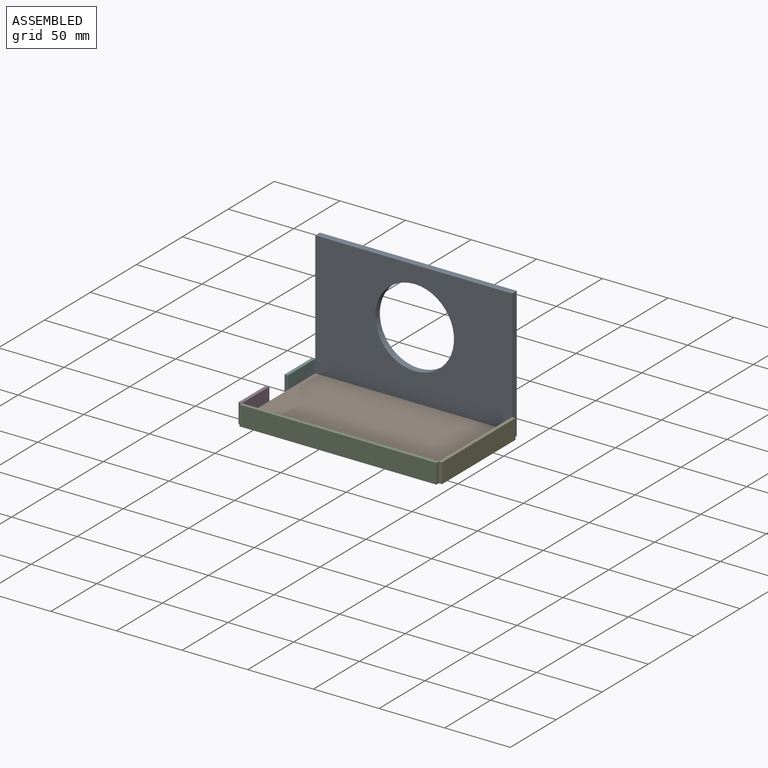
[diagram: assembled view]
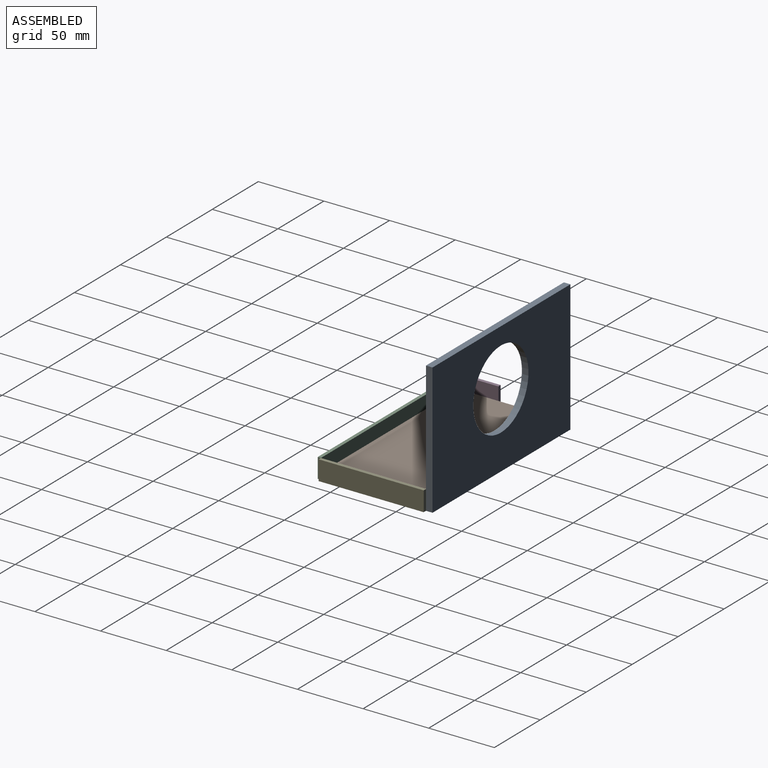
[diagram: assembled view, second angle]
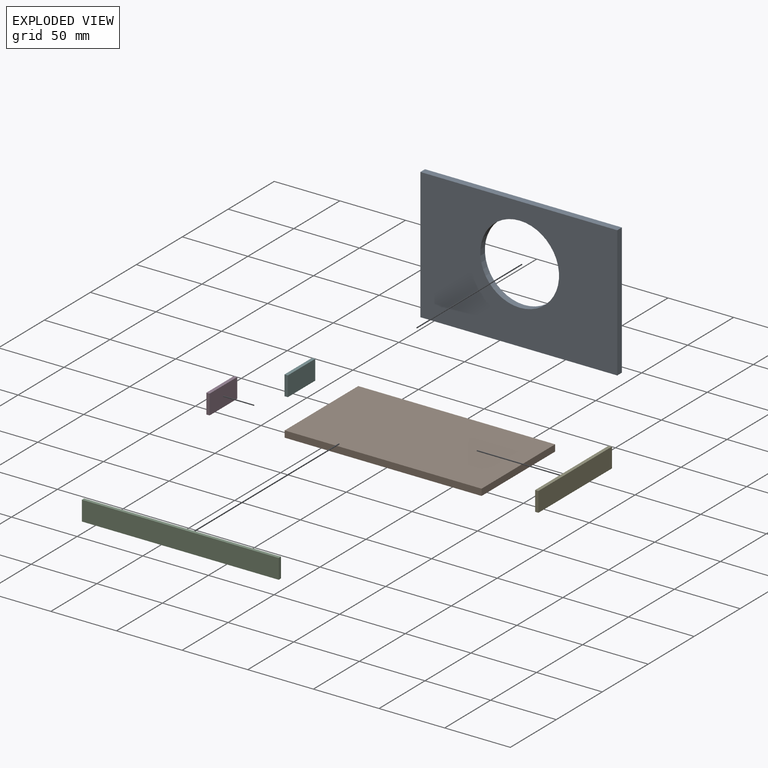
[diagram: exploded view]
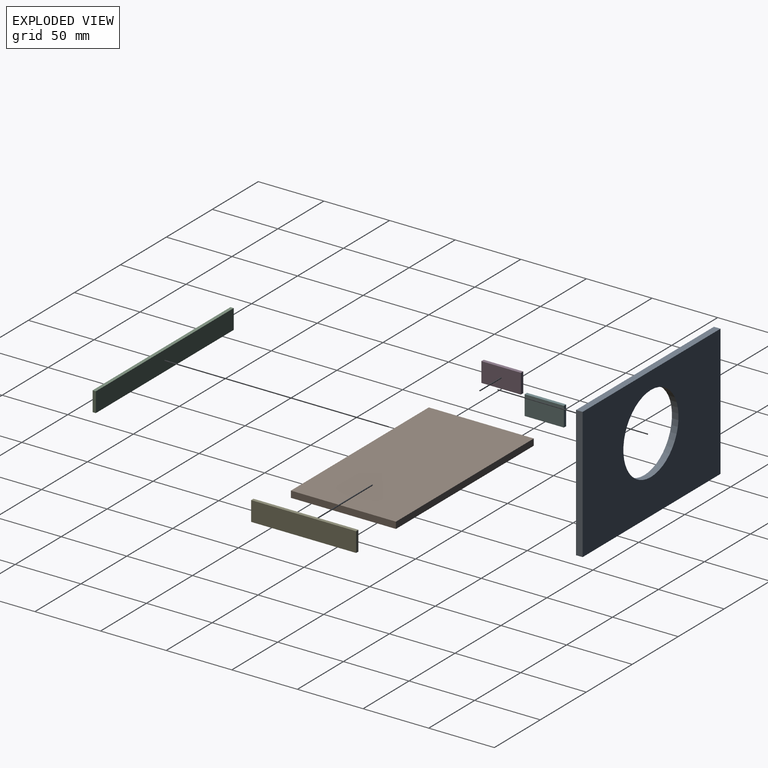
[diagram: exploded view, second angle]
ASSEMBLY  parts=6 mates=5
PART A: 7 faces, bbox 150x5x100 mm
  f0: plane 150x5mm, normal (0,0,1), area 750mm2, adj f1,f4,f5,f6
  f1: plane 100x5mm, normal (-1,0,0), area 500mm2, adj f0,f2,f5,f6
  f2: plane 150x5mm, normal (0,0,-1), area 750mm2, adj f1,f4,f5,f6
  f3: cylinder r=30mm len=60mm, axis (0,1,0), area 942.5mm2, adj f5,f6
  f4: plane 100x5mm, normal (1,0,0), area 500mm2, adj f0,f2,f5,f6
  f5: plane 150x100mm, normal (0,-1,0), area 12172.6mm2, adj f0,f1,f2,f3,f4
  f6: plane 150x100mm, normal (0,1,0), area 12172.6mm2, adj f0,f1,f2,f3,f4
PART B: 6 faces, bbox 150x80x5 mm
  f0: plane 150x5mm, normal (0,1,0), area 750mm2, adj f1,f3,f4,f5
  f1: plane 80x5mm, normal (-1,0,0), area 400mm2, adj f0,f2,f4,f5
  f2: plane 150x5mm, normal (0,-1,0), area 750mm2, adj f1,f3,f4,f5
  f3: plane 80x5mm, normal (1,0,0), area 400mm2, adj f0,f2,f4,f5
  f4: plane 150x80mm, normal (0,0,1), area 12000mm2, adj f0,f1,f2,f3
  f5: plane 150x80mm, normal (0,0,-1), area 12000mm2, adj f0,f1,f2,f3
PART C: 6 faces, bbox 150x2.5x15 mm
  f0: plane 150x2.5mm, normal (0,0,1), area 375mm2, adj f1,f3,f4,f5
  f1: plane 15x2.5mm, normal (-1,0,0), area 37.5mm2, adj f0,f2,f4,f5
  f2: plane 150x2.5mm, normal (0,0,-1), area 375mm2, adj f1,f3,f4,f5
  f3: plane 15x2.5mm, normal (1,0,0), area 37.5mm2, adj f0,f2,f4,f5
  f4: plane 150x15mm, normal (0,-1,0), area 2250mm2, adj f0,f1,f2,f3
  f5: plane 150x15mm, normal (0,1,0), area 2250mm2, adj f0,f1,f2,f3
PART D: 6 faces, bbox 30.1x2.5x15 mm
  f0: plane 30.11x2.5mm, normal (0,0,1), area 75.3mm2, adj f1,f3,f4,f5
  f1: plane 15x2.5mm, normal (-1,0,0), area 37.5mm2, adj f0,f2,f4,f5
  f2: plane 30.11x2.5mm, normal (0,0,-1), area 75.3mm2, adj f1,f3,f4,f5
  f3: plane 15x2.5mm, normal (1,0,0), area 37.5mm2, adj f0,f2,f4,f5
  f4: plane 30.11x15mm, normal (0,-1,0), area 451.7mm2, adj f0,f1,f2,f3
  f5: plane 30.11x15mm, normal (0,1,0), area 451.7mm2, adj f0,f1,f2,f3
PART E: 6 faces, bbox 80x2.5x15 mm
  f0: plane 80x2.5mm, normal (0,0,1), area 200mm2, adj f1,f3,f4,f5
  f1: plane 15x2.5mm, normal (-1,0,0), area 37.5mm2, adj f0,f2,f4,f5
  f2: plane 80x2.5mm, normal (0,0,-1), area 200mm2, adj f1,f3,f4,f5
  f3: plane 15x2.5mm, normal (1,0,0), area 37.5mm2, adj f0,f2,f4,f5
  f4: plane 80x15mm, normal (0,-1,0), area 1200mm2, adj f0,f1,f2,f3
  f5: plane 80x15mm, normal (0,1,0), area 1200mm2, adj f0,f1,f2,f3
PART F: 6 faces, bbox 29.9x2.5x15 mm
  f0: plane 29.89x2.5mm, normal (0,0,1), area 74.7mm2, adj f1,f3,f4,f5
  f1: plane 15x2.5mm, normal (-1,0,0), area 37.5mm2, adj f0,f2,f4,f5
  f2: plane 29.89x2.5mm, normal (0,0,-1), area 74.7mm2, adj f1,f3,f4,f5
  f3: plane 15x2.5mm, normal (1,0,0), area 37.5mm2, adj f0,f2,f4,f5
  f4: plane 29.89x15mm, normal (0,-1,0), area 448.3mm2, adj f0,f1,f2,f3
  f5: plane 29.89x15mm, normal (0,1,0), area 448.3mm2, adj f0,f1,f2,f3
PLACE A t=(-106.48,20.87,8.56)mm
PLACE B t=(-106.48,-61.63,8.56)mm
PLACE C t=(43.52,-61.63,8.56)mm
PLACE D rot(axis=(0,0,1),90deg) t=(-108.98,-61.63,8.56)mm
PLACE E rot(axis=(0,0,-1),90deg) t=(46.02,18.37,8.56)mm
PLACE F rot(axis=(0,0,1),90deg) t=(-108.98,-61.63,8.56)mm
MATE fastened B.f0 <-> A.f5  axis (0,1,0) through (-106.48,18.37,8.56)mm
MATE fastened C.f5 <-> B.f2  axis (0,1,0) through (43.52,-61.63,8.56)mm
MATE fastened D.f4 <-> B.f1  axis (1,0,0) through (-106.48,-61.63,8.56)mm
MATE fastened E.f4 <-> B.f3  axis (-1,0,0) through (43.52,-61.63,8.56)mm
MATE fastened F.f4 <-> B.f1  axis (1,0,0) through (-106.48,18.37,8.56)mm
